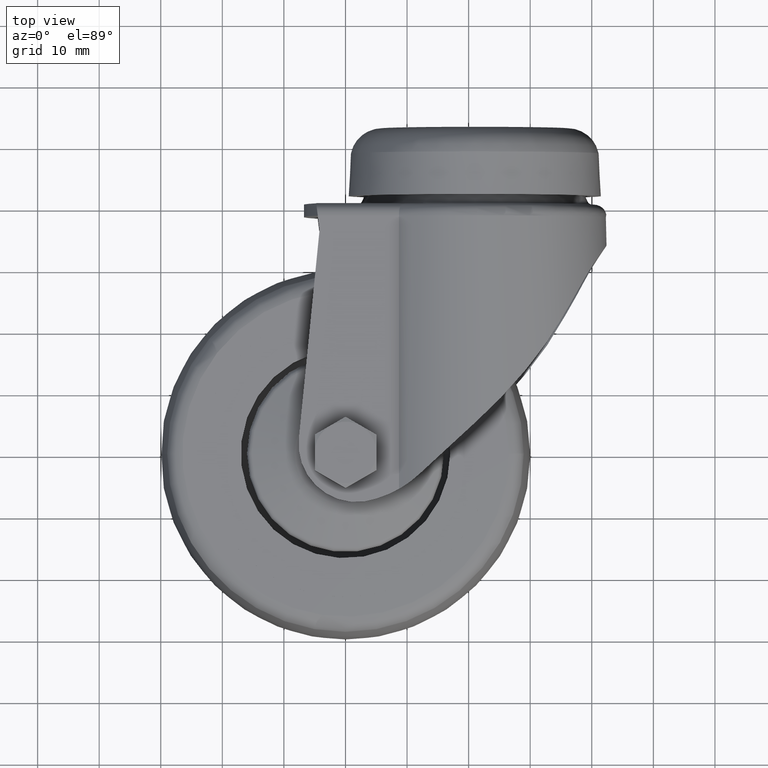
[diagram: clean part render]
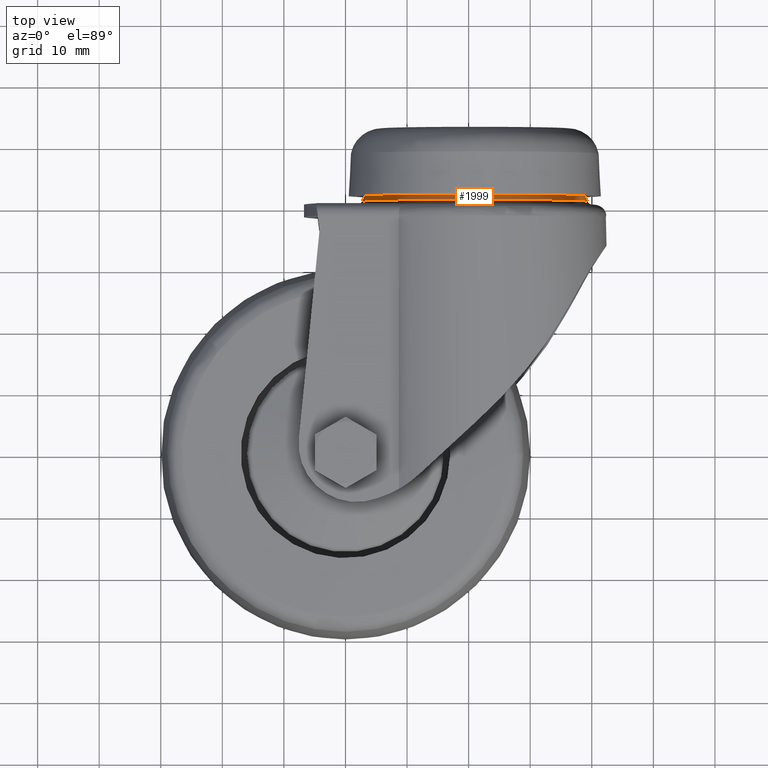
[diagram: same view with one face highlighted and labeled with its STEP entity id]
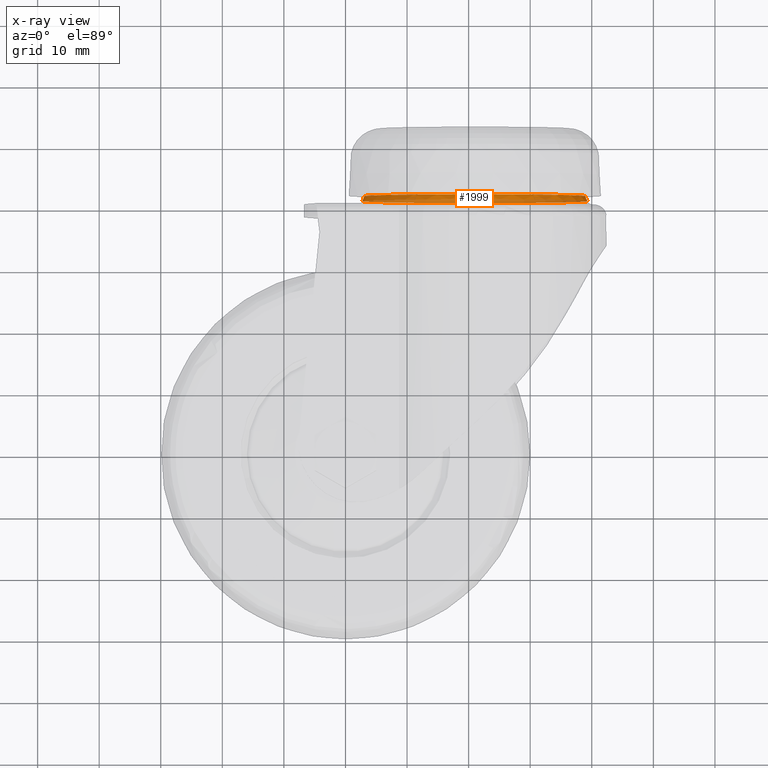
[diagram: x-ray of the same camera — body ghosted, the highlighted face saturated]
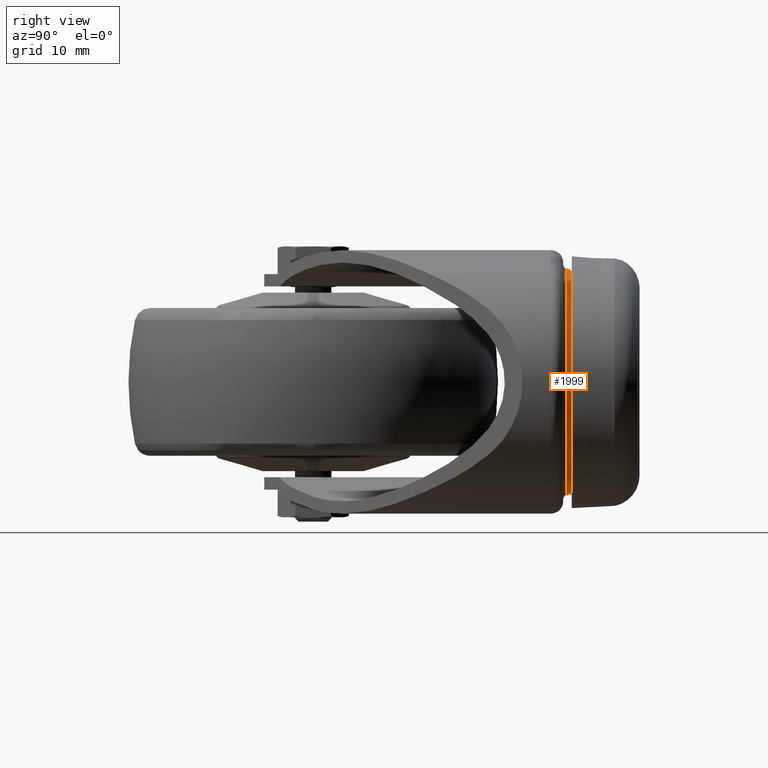
[diagram: same view with one face highlighted and labeled with its STEP entity id]
A machine part, top view. The second image highlights one B-rep face of the part: STEP entity #1999.
The next image is the same camera in x-ray: the body ghosted, the highlighted face saturated — about 37% of this face is hidden behind the body in this view.
A second angle (right view) of the same face is appended — the face is thin or edge-on in the first view.
In plain terms, the highlighted conical surface has half-angle 22.276 deg.
Its self-contained STEP definition (entity closure, byte-faithful):
#397=FACE_BOUND('',#694,.T.);
#504=FACE_OUTER_BOUND('',#693,.T.);
#693=EDGE_LOOP('',(#1619));
#694=EDGE_LOOP('',(#1620));
#867=CIRCLE('',#2224,18.29);
#868=CIRCLE('',#2226,17.95);
#1028=VERTEX_POINT('',#3505);
#1029=VERTEX_POINT('',#3508);
#1242=EDGE_CURVE('',#1028,#1028,#867,.T.);
#1243=EDGE_CURVE('',#1029,#1029,#868,.T.);
#1619=ORIENTED_EDGE('',*,*,#1243,.T.);
#1620=ORIENTED_EDGE('',*,*,#1242,.F.);
#1863=CONICAL_SURFACE('',#2225,18.29,0.388787761290034);
#1999=ADVANCED_FACE('',(#504,#397),#1863,.T.);
#2224=AXIS2_PLACEMENT_3D('',#3506,#2695,#2696);
#2225=AXIS2_PLACEMENT_3D('',#3507,#2697,#2698);
#2226=AXIS2_PLACEMENT_3D('',#3509,#2699,#2700);
#2695=DIRECTION('center_axis',(0.,-1.,0.));
#2696=DIRECTION('ref_axis',(0.,0.,-1.));
#2697=DIRECTION('center_axis',(0.,-1.,0.));
#2698=DIRECTION('ref_axis',(0.,0.,-1.));
#2699=DIRECTION('center_axis',(0.,-1.,0.));
#2700=DIRECTION('ref_axis',(0.,0.,-1.));
#3505=CARTESIAN_POINT('',(21.,41.1700000000001,-18.29));
#3506=CARTESIAN_POINT('Origin',(21.,41.1700000000001,0.));
#3507=CARTESIAN_POINT('Origin',(21.,41.1700000000001,0.));
#3508=CARTESIAN_POINT('',(21.,42.,-17.95));
#3509=CARTESIAN_POINT('Origin',(21.,42.,0.));